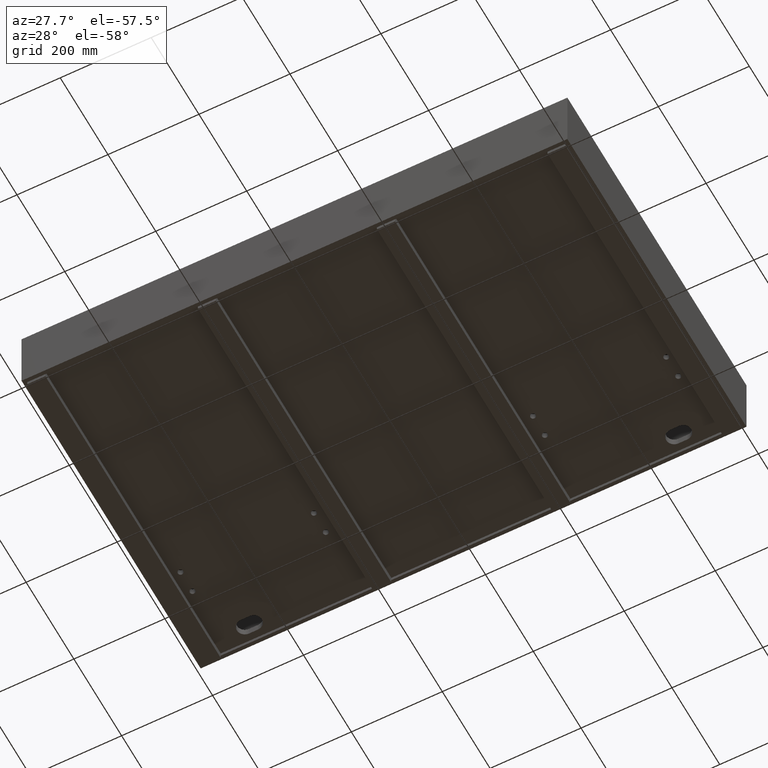
[diagram: clean part render]
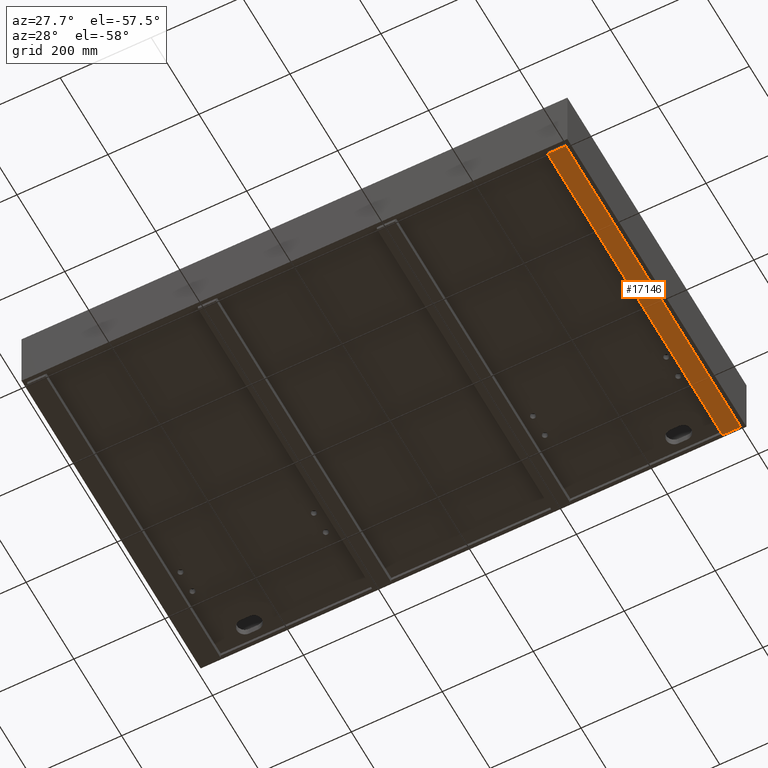
[diagram: same view with one face highlighted and labeled with its STEP entity id]
A machine part, auxiliary view. The second image highlights one B-rep face of the part: STEP entity #17146.
In plain terms, the highlighted planar face has unit normal (0, 0, -1).
Its self-contained STEP definition (entity closure, byte-faithful):
#207 = LINE ( 'NONE', #5951, #7198 ) ;
#240 = EDGE_CURVE ( 'NONE', #17542, #6242, #7790, .T. ) ;
#620 = DIRECTION ( 'NONE',  ( -1.000000000000000000, 1.289270169290241886E-35, 0.0000000000000000000 ) ) ;
#1048 = AXIS2_PLACEMENT_3D ( 'NONE', #2030, #7771, #13496 ) ;
#1291 = ORIENTED_EDGE ( 'NONE', *, *, #6064, .T. ) ;
#2030 = CARTESIAN_POINT ( 'NONE',  ( 0.0000000000000000000, 0.0000000000000000000, -157.0000000000004263 ) ) ;
#2502 = VECTOR ( 'NONE', #620, 1000.000000000000000 ) ;
#4099 = ORIENTED_EDGE ( 'NONE', *, *, #7073, .T. ) ;
#4337 = DIRECTION ( 'NONE',  ( 1.289270169290241886E-35, -1.000000000000000000, 0.0000000000000000000 ) ) ;
#5951 = CARTESIAN_POINT ( 'NONE',  ( 1152.000000000000227, 741.4999000000001388, -157.0000000000004263 ) ) ;
#6064 = EDGE_CURVE ( 'NONE', #12361, #18431, #8299, .T. ) ;
#6242 = VERTEX_POINT ( 'NONE', #10997 ) ;
#6804 = VECTOR ( 'NONE', #4337, 1000.000000000000000 ) ;
#7073 = EDGE_CURVE ( 'NONE', #18431, #17542, #11474, .T. ) ;
#7198 = VECTOR ( 'NONE', #11673, 1000.000000000000000 ) ;
#7771 = DIRECTION ( 'NONE',  ( 0.0000000000000000000, 0.0000000000000000000, -1.000000000000000000 ) ) ;
#7790 = LINE ( 'NONE', #13517, #2502 ) ;
#8299 = LINE ( 'NONE', #11292, #11591 ) ;
#8578 = EDGE_LOOP ( 'NONE', ( #4099, #13845, #11860, #1291 ) ) ;
#9181 = FACE_OUTER_BOUND ( 'NONE', #8578, .T. ) ;
#10465 = EDGE_CURVE ( 'NONE', #6242, #12361, #207, .T. ) ;
#10997 = CARTESIAN_POINT ( 'NONE',  ( 1152.000000000000227, 8.500000000000007105, -157.0000000000004263 ) ) ;
#11292 = CARTESIAN_POINT ( 'NONE',  ( 1192.000000000000000, 741.4999000000001388, -157.0000000000004263 ) ) ;
#11474 = LINE ( 'NONE', #17211, #6804 ) ;
#11591 = VECTOR ( 'NONE', #17016, 1000.000000000000000 ) ;
#11673 = DIRECTION ( 'NONE',  ( -1.289270169290241886E-35, 1.000000000000000000, 0.0000000000000000000 ) ) ;
#11769 = CARTESIAN_POINT ( 'NONE',  ( 1152.000000000000227, 741.4999000000001388, -157.0000000000004263 ) ) ;
#11860 = ORIENTED_EDGE ( 'NONE', *, *, #10465, .T. ) ;
#12361 = VERTEX_POINT ( 'NONE', #11769 ) ;
#13496 = DIRECTION ( 'NONE',  ( -1.000000000000000000, 1.289270169290241886E-35, 0.0000000000000000000 ) ) ;
#13517 = CARTESIAN_POINT ( 'NONE',  ( 1192.000000000000000, 8.500000000000007105, -157.0000000000004263 ) ) ;
#13845 = ORIENTED_EDGE ( 'NONE', *, *, #240, .T. ) ;
#14917 = PLANE ( 'NONE',  #1048 ) ;
#17016 = DIRECTION ( 'NONE',  ( 1.000000000000000000, -1.289270169290241886E-35, 0.0000000000000000000 ) ) ;
#17146 = ADVANCED_FACE ( 'NONE', ( #9181 ), #14917, .T. ) ;
#17211 = CARTESIAN_POINT ( 'NONE',  ( 1192.000000000000000, 741.4999000000001388, -157.0000000000004263 ) ) ;
#17228 = CARTESIAN_POINT ( 'NONE',  ( 1192.000000000000000, 741.4999000000001388, -157.0000000000004263 ) ) ;
#17542 = VERTEX_POINT ( 'NONE', #17688 ) ;
#17688 = CARTESIAN_POINT ( 'NONE',  ( 1192.000000000000000, 8.500000000000007105, -157.0000000000004263 ) ) ;
#18431 = VERTEX_POINT ( 'NONE', #17228 ) ;